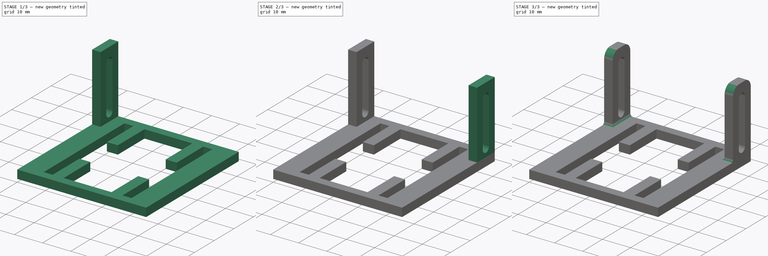
[diagram: build sequence overview — one tinted view per stage of 3, left to right]
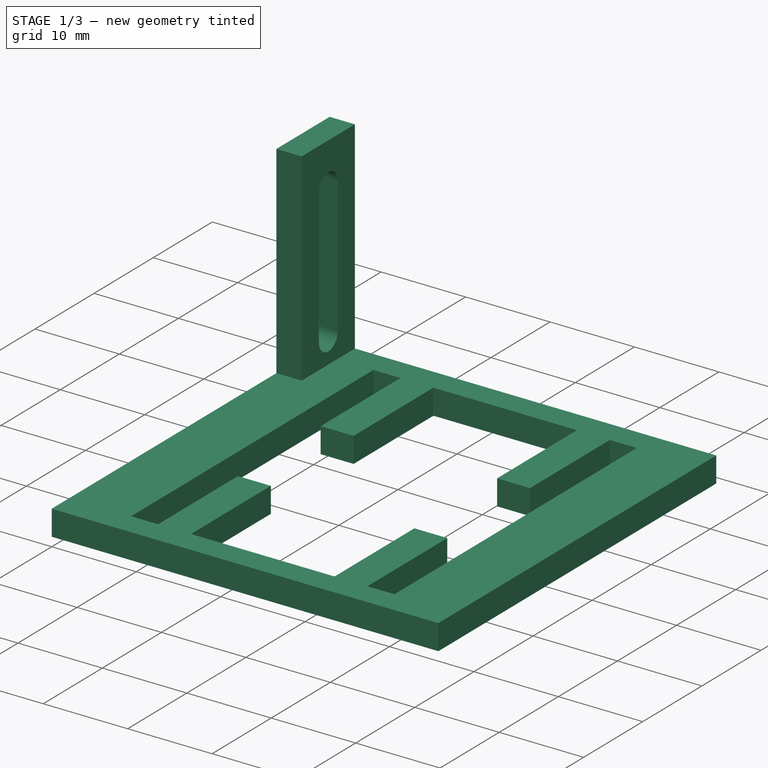
[diagram: stage 1 of 3 — iso view after this stage's code; geometry added in this stage tinted green]
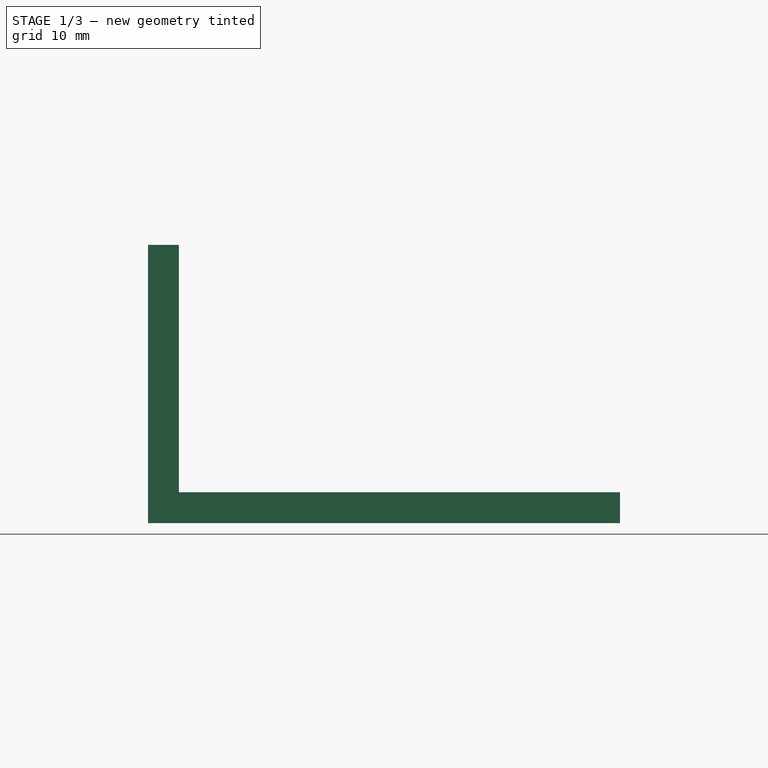
[diagram: stage 1 of 3 — front view after this stage's code; geometry added in this stage tinted green]
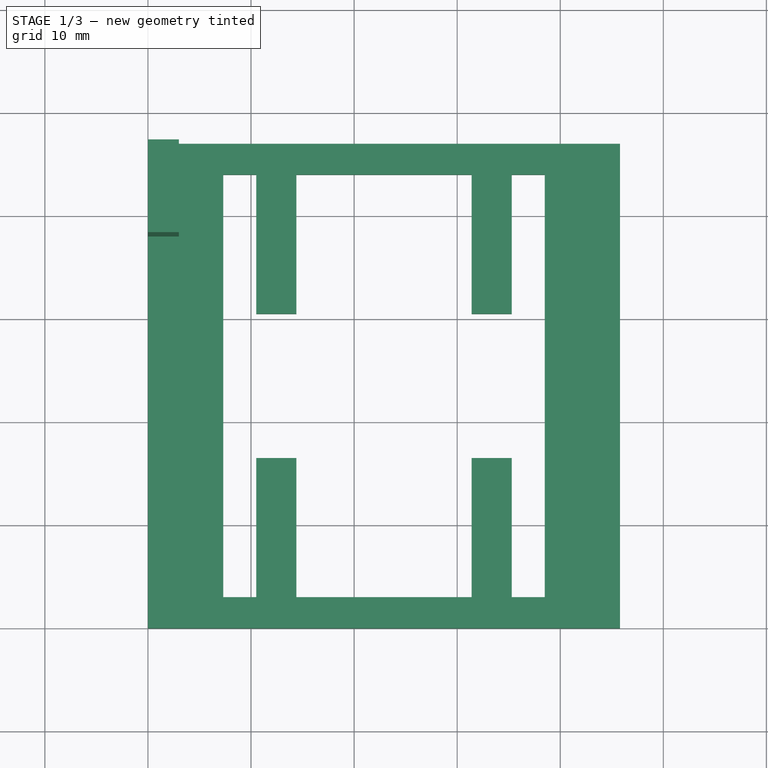
[diagram: stage 1 of 3 — top view after this stage's code; geometry added in this stage tinted green]
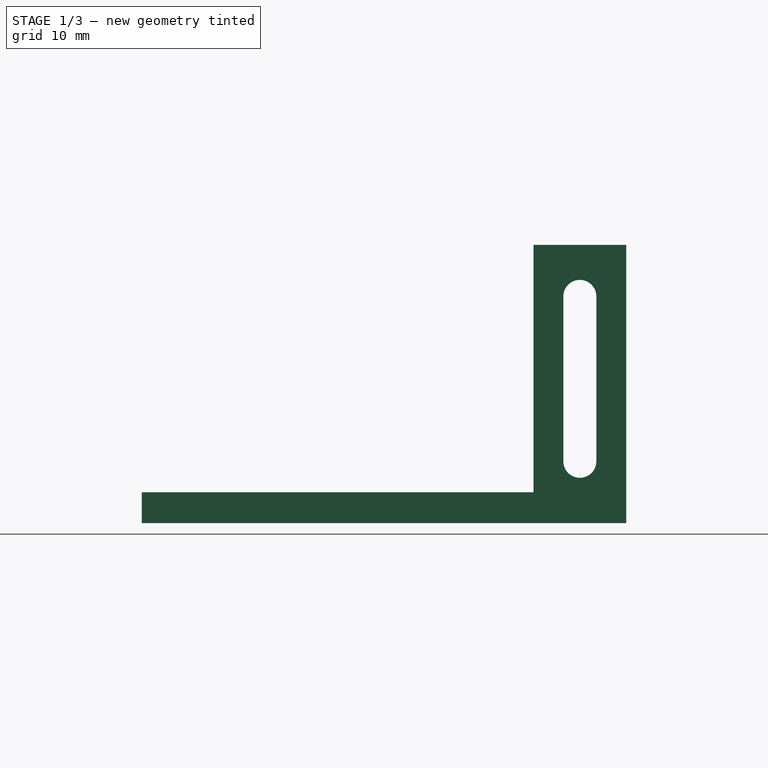
[diagram: stage 1 of 3 — right view after this stage's code; geometry added in this stage tinted green]
FCSTD DOCUMENT  (FreeCAD 0.16R6712 (Git))
Label: camera_support
License: All rights reserved
LicenseURL: http://en.wikipedia.org/wiki/All_rights_reserved
objects: Sketcher::SketchObject×3, PartDesign::Pad×3, Part::Fuse×2, PartDesign::Fillet×2
note: 13 computed .brp shape members not serialized (recipe doc carries the construction recipe); baked Part::Feature solids carry a one-line shape summary decoded from their .brp

FEATURE [Sketcher::SketchObject] Sketch
  sketch-geometry (28):
    g0: LineSegment StartX=0 StartY=0 StartZ=0 EndX=45.8 EndY=0 EndZ=0
    g1: LineSegment StartX=45.8 StartY=0 StartZ=0 EndX=45.8 EndY=47 EndZ=0
    g2: LineSegment StartX=45.8 StartY=47 StartZ=0 EndX=0 EndY=47 EndZ=0
    g3: LineSegment StartX=0 StartY=47 StartZ=0 EndX=0 EndY=0 EndZ=0
    g4: LineSegment StartX=7.3 StartY=44 StartZ=0 EndX=10.5 EndY=44 EndZ=0
    g5: LineSegment StartX=10.5 StartY=44 StartZ=0 EndX=10.5 EndY=30.5 EndZ=0
    g6: LineSegment StartX=10.5 StartY=3 StartZ=0 EndX=7.3 EndY=3 EndZ=0
    g7: LineSegment StartX=7.3 StartY=3 StartZ=0 EndX=7.3 EndY=44 EndZ=0
    g8: LineSegment StartX=35.3 StartY=44 StartZ=0 EndX=38.5 EndY=44 EndZ=0
    g9: LineSegment StartX=38.5 StartY=44 StartZ=0 EndX=38.5 EndY=3 EndZ=0
    g10: LineSegment StartX=38.5 StartY=3 StartZ=0 EndX=35.3 EndY=3 EndZ=0
    g11: LineSegment StartX=35.3 StartY=3 StartZ=0 EndX=35.3 EndY=16.5 EndZ=0
    g12: LineSegment [constr] StartX=22.9 StartY=47 StartZ=0 EndX=22.9 EndY=0 EndZ=0
    g13: LineSegment StartX=10.5 StartY=30.5 StartZ=0 EndX=14.4 EndY=30.5 EndZ=0
    g14: LineSegment StartX=35.3 StartY=16.5 StartZ=0 EndX=31.4 EndY=16.5 EndZ=0
    g15: LineSegment StartX=10.5 StartY=16.5 StartZ=0 EndX=10.5 EndY=3 EndZ=0
    g16: LineSegment StartX=35.3 StartY=30.5 StartZ=0 EndX=35.3 EndY=44 EndZ=0
    g17: LineSegment StartX=31.4 StartY=44 StartZ=0 EndX=31.4 EndY=30.5 EndZ=0
    g18: LineSegment StartX=31.4 StartY=3 StartZ=0 EndX=14.4 EndY=3 EndZ=0
    g19: LineSegment StartX=14.4 StartY=3 StartZ=0 EndX=14.4 EndY=16.5 EndZ=0
    g20: LineSegment [constr] StartX=10.5 StartY=3 StartZ=0 EndX=14.4 EndY=3 EndZ=0
    g21: LineSegment StartX=14.4 StartY=30.5 StartZ=0 EndX=14.4 EndY=44 EndZ=0
    g22: LineSegment StartX=31.4 StartY=30.5 StartZ=0 EndX=35.3 EndY=30.5 EndZ=0
    g23: LineSegment StartX=31.4 StartY=16.5 StartZ=0 EndX=31.4 EndY=3 EndZ=0
    g24: LineSegment StartX=14.4 StartY=16.5 StartZ=0 EndX=10.5 EndY=16.5 EndZ=0
    g25: LineSegment StartX=14.4 StartY=44 StartZ=0 EndX=31.4 EndY=44 EndZ=0
    g26: GeomPoint [constr] X=8.9 Y=44 Z=0
    g27: GeomPoint [constr] X=36.9 Y=44 Z=0
  constraints (74):
    c: Coincident(g0,g1)
    c: Coincident(g1,g2)
    c: Coincident(g2,g3)
    c: Coincident(g3,g0)
    c: Horizontal(g0)
    c: Horizontal(g2)
    c: Vertical(g1)
    c: Vertical(g3)
    c: Coincident(g0,g-1)
    c: DistanceX(g0,g0) = 45.8
    c: DistanceY(g3,g3) = 47
    c: Coincident(g4,g5)
    c: Coincident(g15,g6)
    c: Coincident(g6,g7)
    c: Coincident(g7,g4)
    c: Horizontal(g4)
    c: Horizontal(g6)
    c: Vertical(g5)
    c: Vertical(g7)
    c: Coincident(g8,g9)
    c: Coincident(g9,g10)
    c: Coincident(g10,g11)
    c: Coincident(g16,g8)
    c: Horizontal(g8)
    c: Horizontal(g10)
    c: Vertical(g9)
    c: Vertical(g11)
    c: PointOnObject(g12,g2)
    c: PointOnObject(g12,g0)
    c: Symmetric(g2,g2,g12)
    c: Symmetric(g4,g8,g12)
    c: Equal(g4,g8)
    c: DistanceX(g4,g4) = 3.2
    c: DistanceY(g-1,g6) = 3
    c: Horizontal(g13)
    c: Horizontal(g14)
    c: Coincident(g5,g13)
    c: Tangent(g5,g15)
    c: Tangent(g11,g16)
    c: Coincident(g24,g15)
    c: Coincident(g14,g11)
    c: Coincident(g22,g16)
    c: DistanceY(g0,g9) = 3
    c: Coincident(g23,g18)
    c: Coincident(g18,g19)
    c: Horizontal(g18)
    c: Vertical(g17)
    c: Vertical(g19)
    c: DistanceX(g21,g17) = 17
    c: Symmetric(g21,g17,g12)
    c: Coincident(g20,g6)
    c: Coincident(g20,g18)
    c: Horizontal(g20)
    c: PointOnObject(g19,g14)
    c: Tangent(g19,g21)
    c: Coincident(g13,g21)
    c: Tangent(g13,g22)
    c: Coincident(g17,g22)
    c: Tangent(g17,g23)
    c: Coincident(g14,g23)
    c: Tangent(g14,g24)
    c: PointOnObject(g24,g19)
    c: DistanceY(g8,g1) = 3
    c: Coincident(g17,g25)
    c: Coincident(g21,g25)
    c: Horizontal(g25)
    c: DistanceY(g21,g2) = 3
    c: DistanceY(g16,g16) = 13.5
    c: Equal(g11,g16)
    c: PointOnObject(g27,g8)
    c: Symmetric(g8,g8,g27)
    c: PointOnObject(g26,g4)
    c: Symmetric(g4,g4,g26)
    c: DistanceX(g26,g27) = 28
FEATURE [PartDesign::Pad] Pad
  Length = 3
  Length2 = 100
  Sketch = -> Sketch
  Type = 0
FEATURE [Sketcher::SketchObject] Sketch001
  Placement = pos=(3,0,0) rot=(0.57735,0.57735,0.57735;2.0944rad)
  sketch-geometry (9):
    g0: LineSegment StartX=38 StartY=0 StartZ=0 EndX=47 EndY=0 EndZ=0
    g1: LineSegment StartX=47 StartY=0 StartZ=0 EndX=47 EndY=27 EndZ=0
    g2: LineSegment StartX=47 StartY=27 StartZ=0 EndX=38 EndY=27 EndZ=0
    g3: LineSegment StartX=38 StartY=27 StartZ=0 EndX=38 EndY=0 EndZ=0
    g4: ArcOfCircle CenterX=42.5 CenterY=22 CenterZ=0 NormalX=0 NormalY=0 NormalZ=1 Radius=1.6 StartAngle=0 EndAngle=3.14159
    g5: ArcOfCircle CenterX=42.5 CenterY=6 CenterZ=0 NormalX=0 NormalY=0 NormalZ=1 Radius=1.6 StartAngle=3.14159 EndAngle=6.28319
    g6: LineSegment StartX=40.9 StartY=22 StartZ=0 EndX=40.9 EndY=6 EndZ=0
    g7: LineSegment StartX=44.1 StartY=22 StartZ=0 EndX=44.1 EndY=6 EndZ=0
    g8: LineSegment [constr] StartX=42.5 StartY=27 StartZ=0 EndX=42.5 EndY=0 EndZ=0
  constraints (26):
    c: Coincident(g0,g1)
    c: Coincident(g1,g2)
    c: Coincident(g2,g3)
    c: Coincident(g3,g0)
    c: Horizontal(g0)
    c: Horizontal(g2)
    c: Vertical(g1)
    c: Vertical(g3)
    c: PointOnObject(g0,g-1)
    c: DistanceX(g2,g2) = 9
    c: DistanceY(g1,g1) = 27
    c: Tangent(g4,g7) = 1.5708
    c: Tangent(g4,g6) = -1.5708
    c: Tangent(g6,g5) = -1.5708
    c: Tangent(g7,g5) = 1.5708
    c: Vertical(g6)
    c: Equal(g4,g5)
    c: PointOnObject(g8,g2)
    c: PointOnObject(g8,g0)
    c: Vertical(g8)
    c: Symmetric(g2,g2,g8)
    c: PointOnObject(g4,g8)
    c: DistanceY(g4,g8) = 5
    c: DistanceY(g8,g5) = 6
    c: Radius(g5) = 1.6
    c: DistanceX(g-1,g8) = 42.5
FEATURE [PartDesign::Pad] Pad001
  Length = 3
  Length2 = 100
  Placement = pos=(3,0,0) rot=(0.57735,0.57735,0.57735;2.0944rad)
  Reversed = true
  Sketch = -> Sketch001
  Type = 0
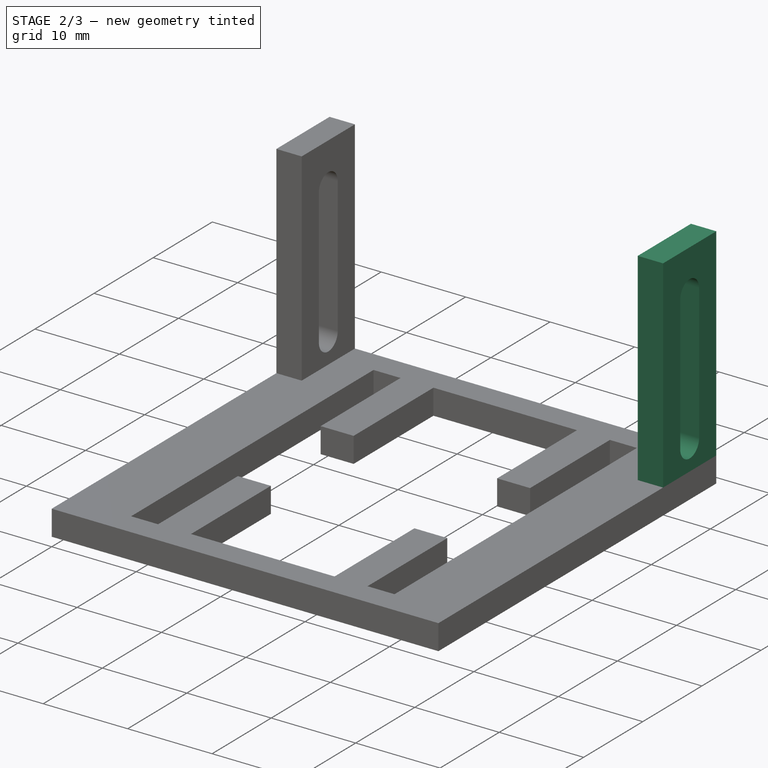
[diagram: stage 2 of 3 — iso view after this stage's code; geometry added in this stage tinted green]
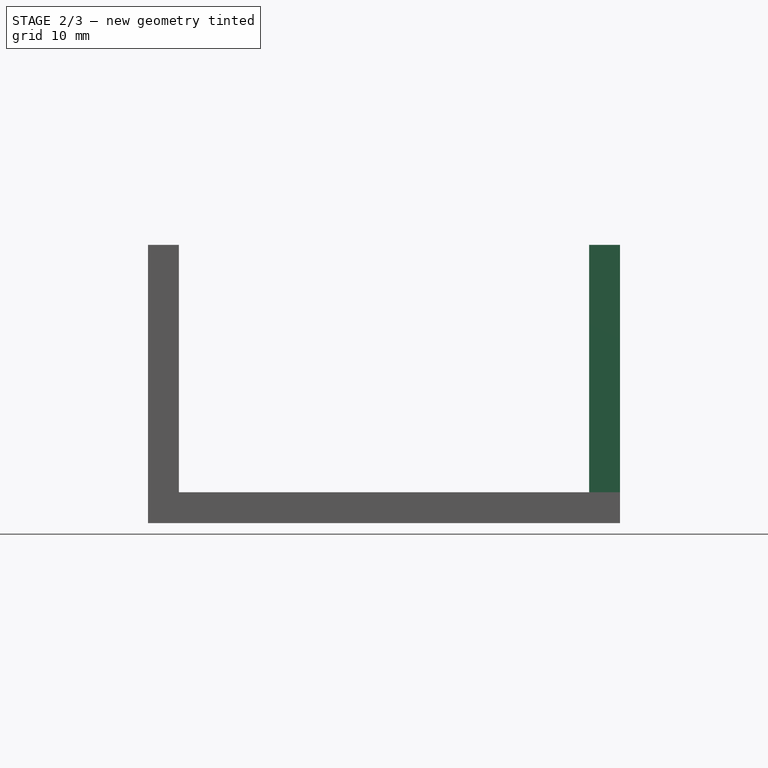
[diagram: stage 2 of 3 — front view after this stage's code; geometry added in this stage tinted green]
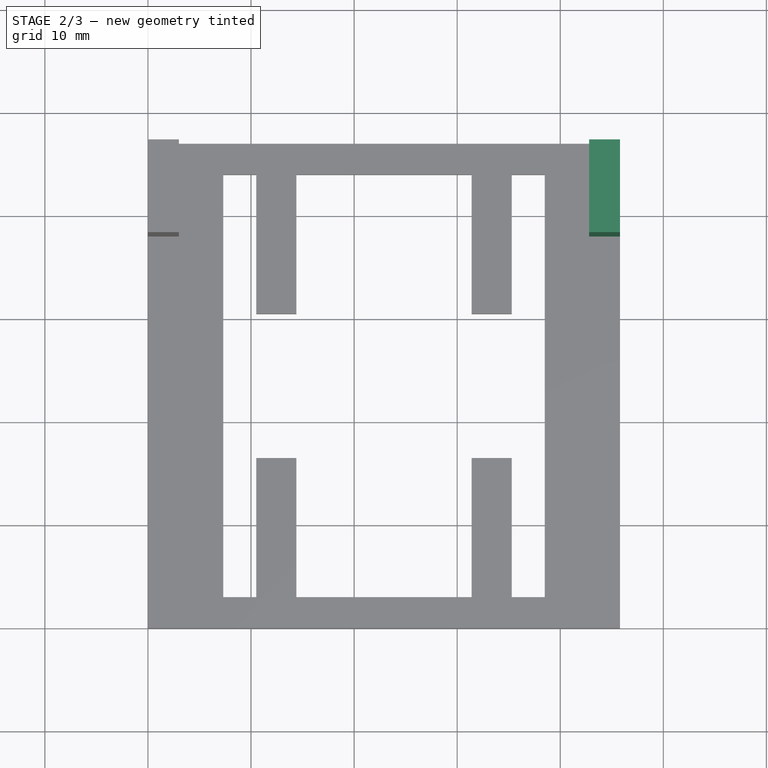
[diagram: stage 2 of 3 — top view after this stage's code; geometry added in this stage tinted green]
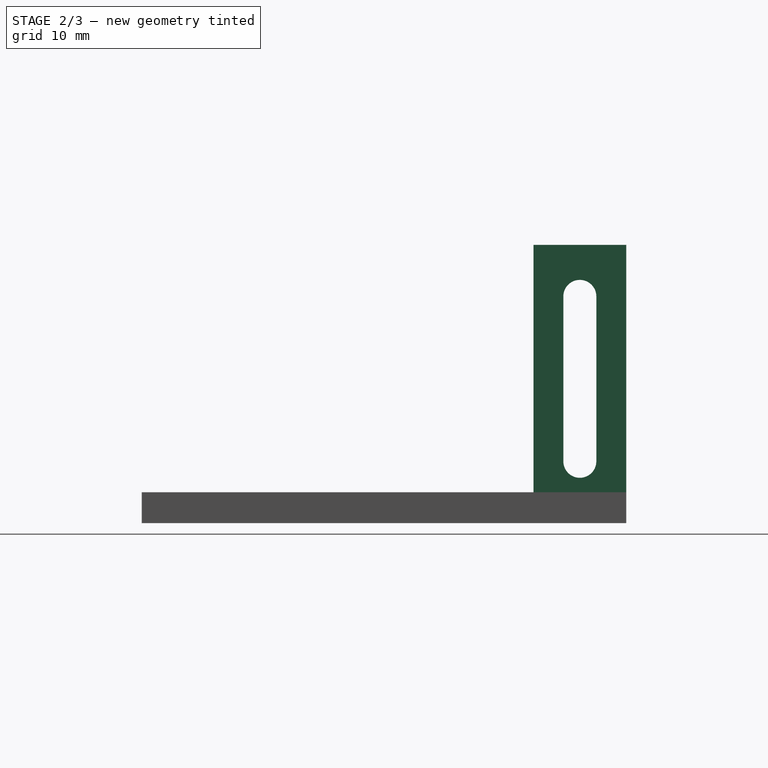
[diagram: stage 2 of 3 — right view after this stage's code; geometry added in this stage tinted green]
FEATURE [Sketcher::SketchObject] Sketch002
  Placement = pos=(45.8,0,0) rot=(0.57735,0.57735,0.57735;2.0944rad)
  sketch-geometry (9):
    g0: LineSegment StartX=38 StartY=0 StartZ=0 EndX=47 EndY=0 EndZ=0
    g1: LineSegment StartX=47 StartY=0 StartZ=0 EndX=47 EndY=27 EndZ=0
    g2: LineSegment StartX=47 StartY=27 StartZ=0 EndX=38 EndY=27 EndZ=0
    g3: LineSegment StartX=38 StartY=27 StartZ=0 EndX=38 EndY=0 EndZ=0
    g4: ArcOfCircle CenterX=42.5 CenterY=22 CenterZ=0 NormalX=0 NormalY=0 NormalZ=1 Radius=1.6 StartAngle=0 EndAngle=3.14159
    g5: ArcOfCircle CenterX=42.5 CenterY=6 CenterZ=0 NormalX=0 NormalY=0 NormalZ=1 Radius=1.6 StartAngle=3.14159 EndAngle=6.28319
    g6: LineSegment StartX=40.9 StartY=22 StartZ=0 EndX=40.9 EndY=6 EndZ=0
    g7: LineSegment StartX=44.1 StartY=22 StartZ=0 EndX=44.1 EndY=6 EndZ=0
    g8: LineSegment [constr] StartX=42.5 StartY=27 StartZ=0 EndX=42.5 EndY=0 EndZ=0
  constraints (26):
    c: Coincident(g0,g1)
    c: Coincident(g1,g2)
    c: Coincident(g2,g3)
    c: Coincident(g3,g0)
    c: Horizontal(g0)
    c: Horizontal(g2)
    c: Vertical(g1)
    c: Vertical(g3)
    c: PointOnObject(g0,g-1)
    c: DistanceX(g2,g2) = 9
    c: DistanceY(g1,g1) = 27
    c: Tangent(g4,g7) = 1.5708
    c: Tangent(g4,g6) = -1.5708
    c: Tangent(g6,g5) = -1.5708
    c: Tangent(g7,g5) = 1.5708
    c: Vertical(g6)
    c: Equal(g4,g5)
    c: PointOnObject(g8,g2)
    c: PointOnObject(g8,g0)
    c: Vertical(g8)
    c: Symmetric(g2,g2,g8)
    c: PointOnObject(g4,g8)
    c: DistanceY(g4,g8) = 5
    c: DistanceY(g8,g5) = 6
    c: Radius(g5) = 1.6
    c: DistanceX(g-1,g8) = 42.5
FEATURE [PartDesign::Pad] Pad002
  Length = 3
  Length2 = 100
  Placement = pos=(45.8,0,0) rot=(0.57735,0.57735,0.57735;2.0944rad)
  Reversed = true
  Sketch = -> Sketch002
  Type = 0
FEATURE [Part::Fuse] Fusion
  Base = -> Pad
  Tool = -> Pad001
FEATURE [Part::Fuse] Fusion001
  Base = -> Pad002
  Tool = -> Fusion
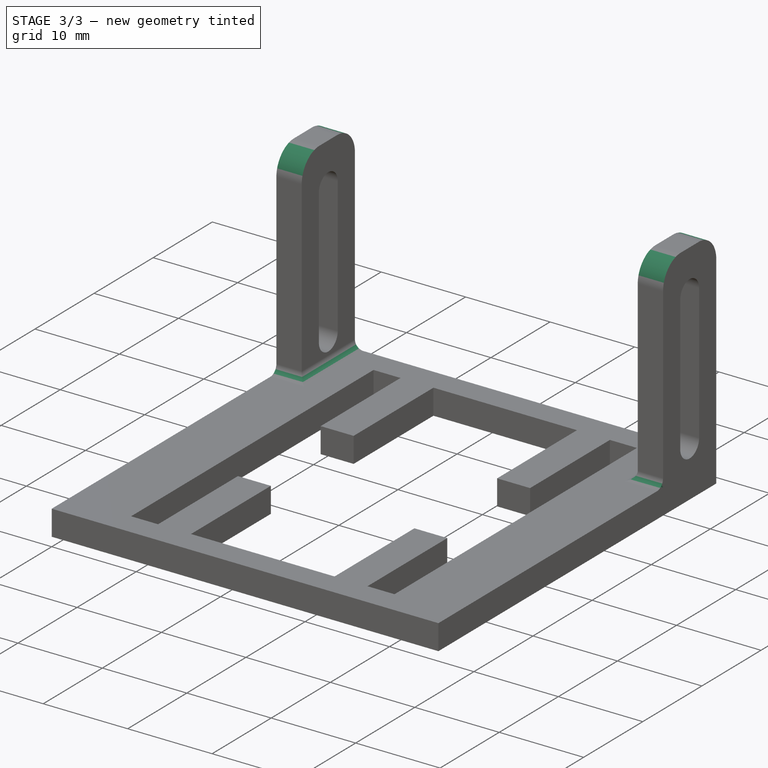
[diagram: stage 3 of 3 — iso view after this stage's code; geometry added in this stage tinted green]
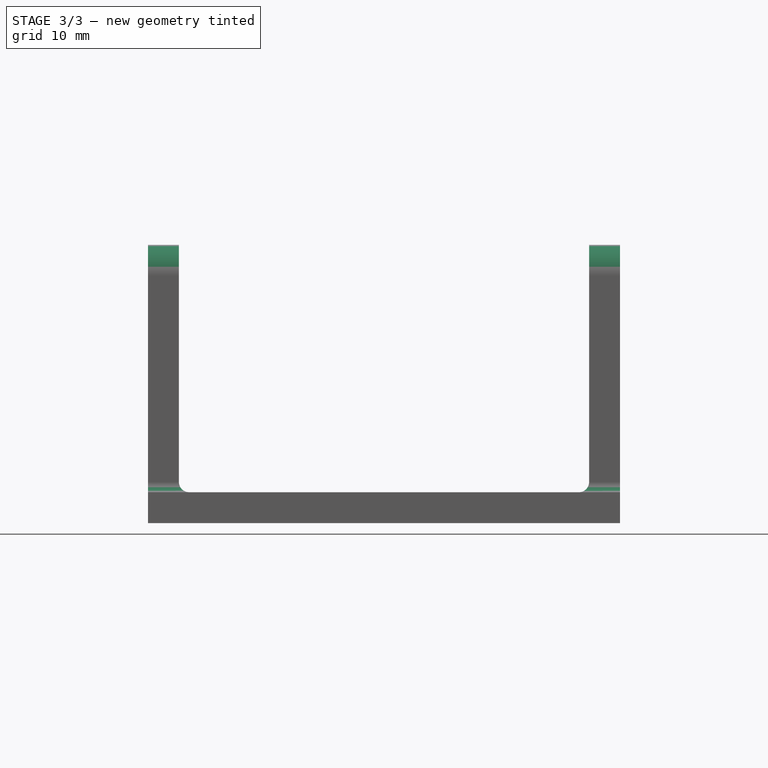
[diagram: stage 3 of 3 — front view after this stage's code; geometry added in this stage tinted green]
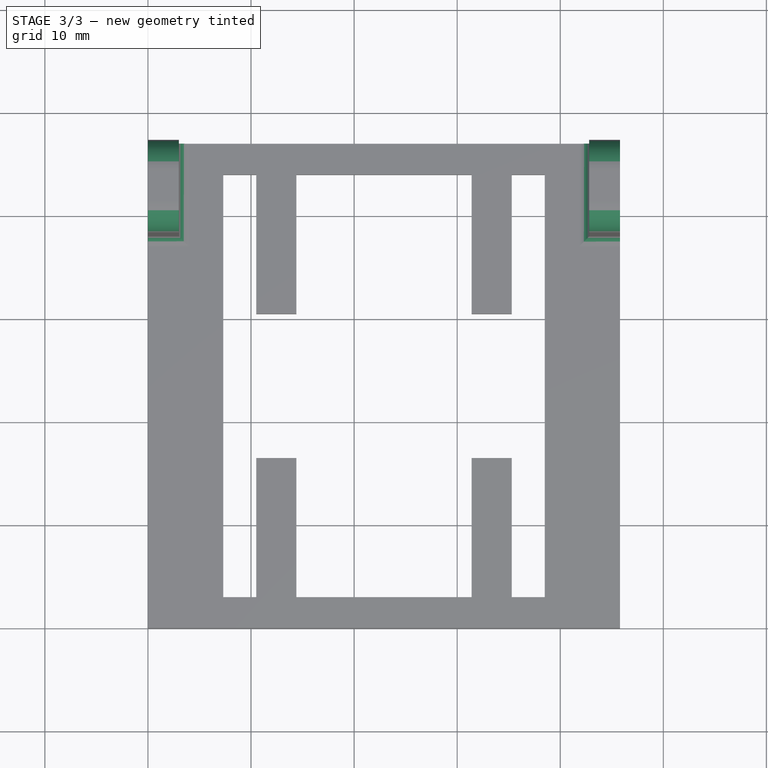
[diagram: stage 3 of 3 — top view after this stage's code; geometry added in this stage tinted green]
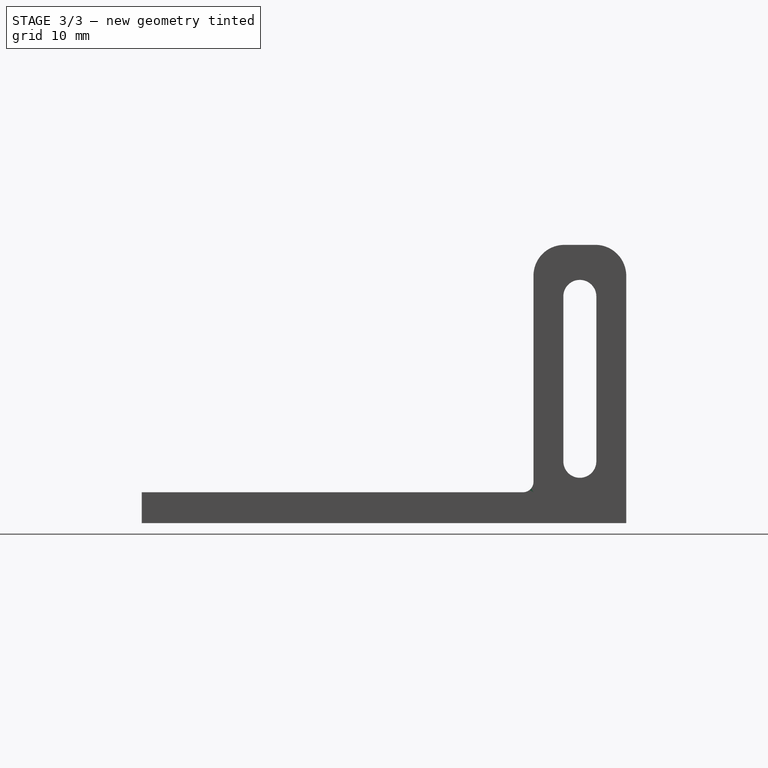
[diagram: stage 3 of 3 — right view after this stage's code; geometry added in this stage tinted green]
FEATURE [PartDesign::Fillet] Fillet
  Base = -> Fusion001 [Edge28,Edge27,Edge16,Edge9]
  Radius = 1
FEATURE [PartDesign::Fillet] Fillet001
  Base = -> Fillet [Edge134,Edge19,Edge65,Edge3]
  Radius = 3
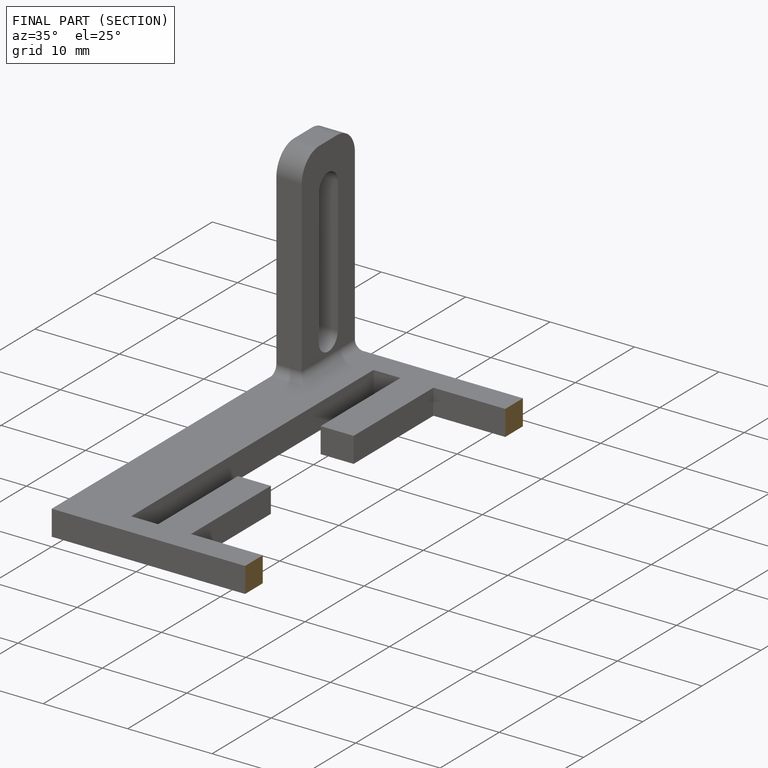
[diagram: finished part — half-section view (interior)]
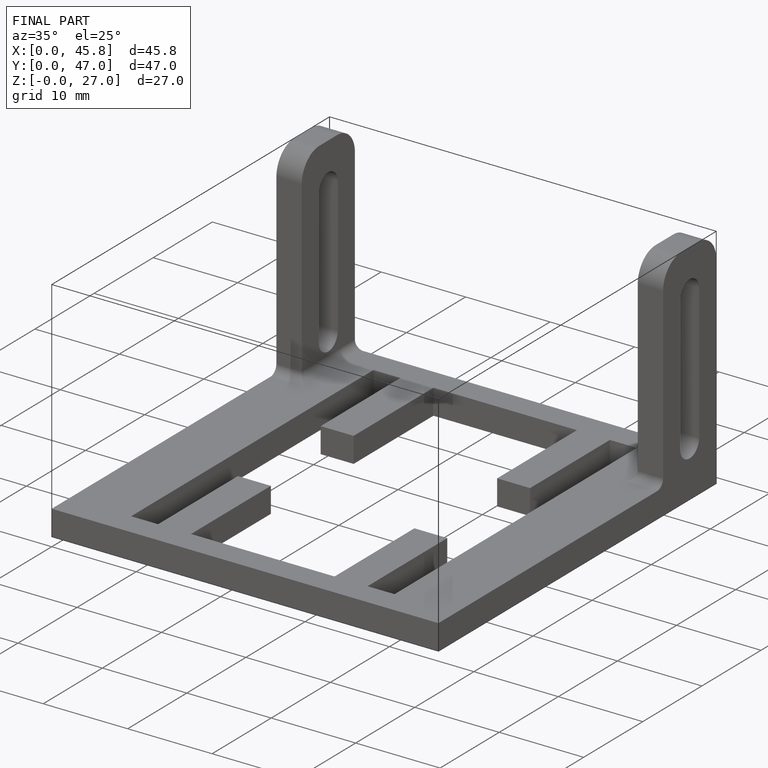
[diagram: finished part — iso view with bounding-box wireframe]
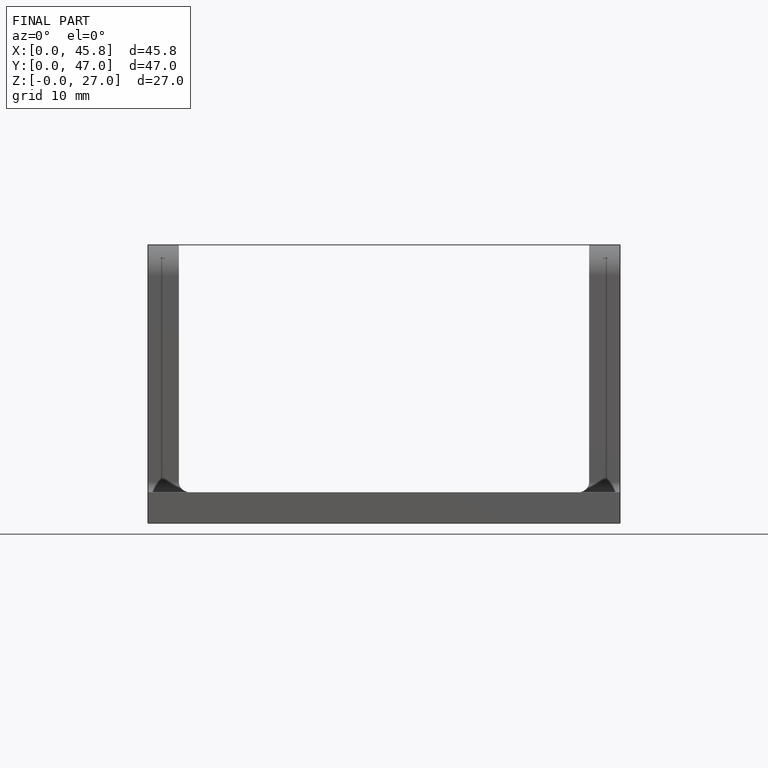
[diagram: finished part — front view with bounding-box wireframe]
